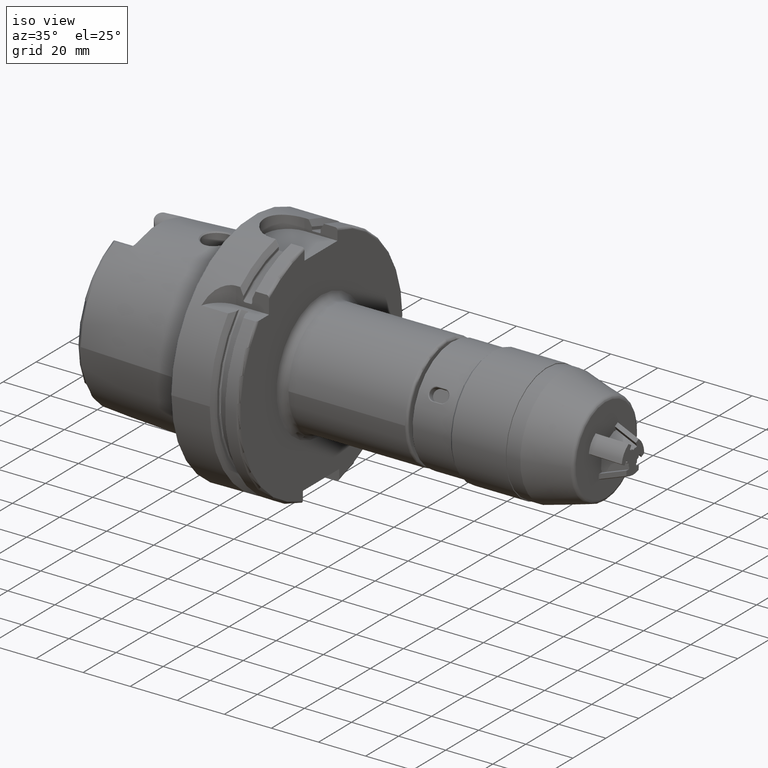
[diagram: clean part render]
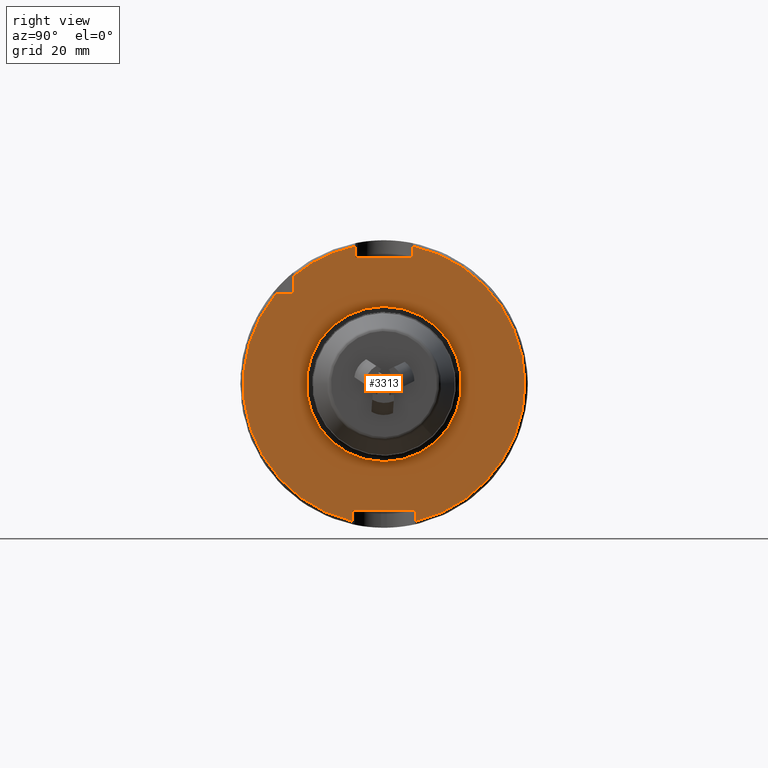
[diagram: tour spotlight — one face highlighted and labeled with its STEP entity id]
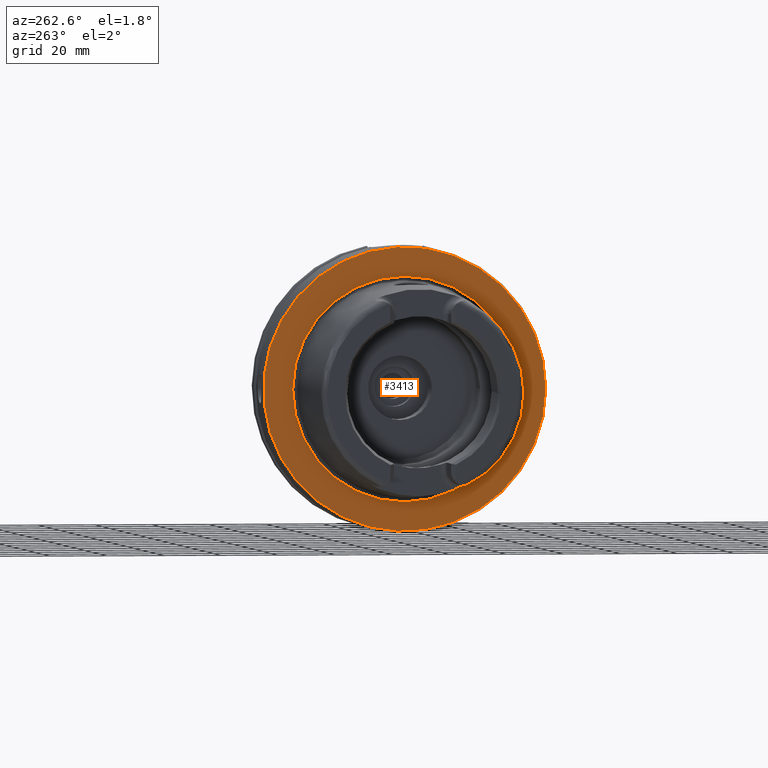
[diagram: tour spotlight — one face highlighted and labeled with its STEP entity id]
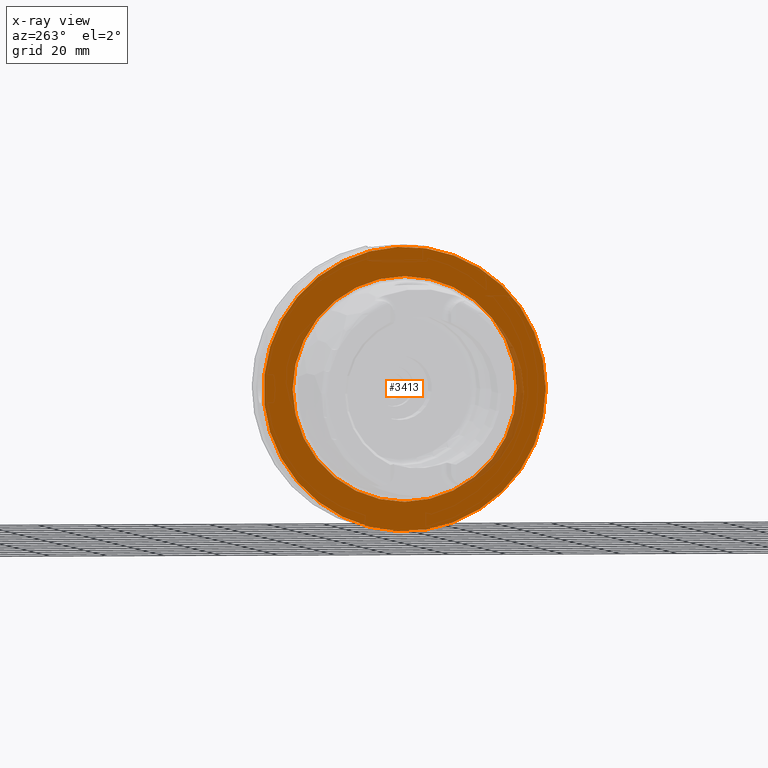
[diagram: x-ray of the same camera — body ghosted, this tour face saturated]
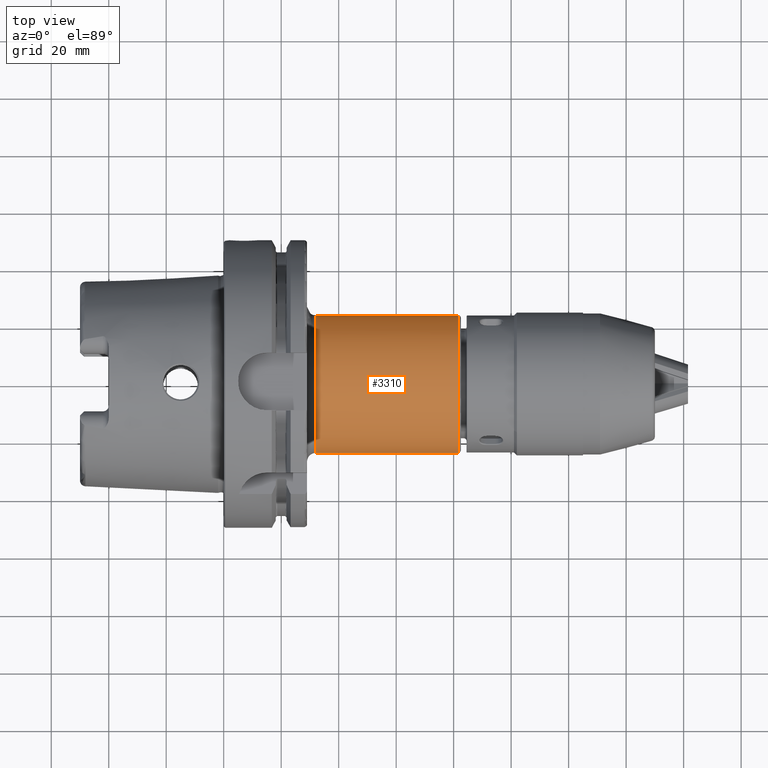
[diagram: tour spotlight — one face highlighted and labeled with its STEP entity id]
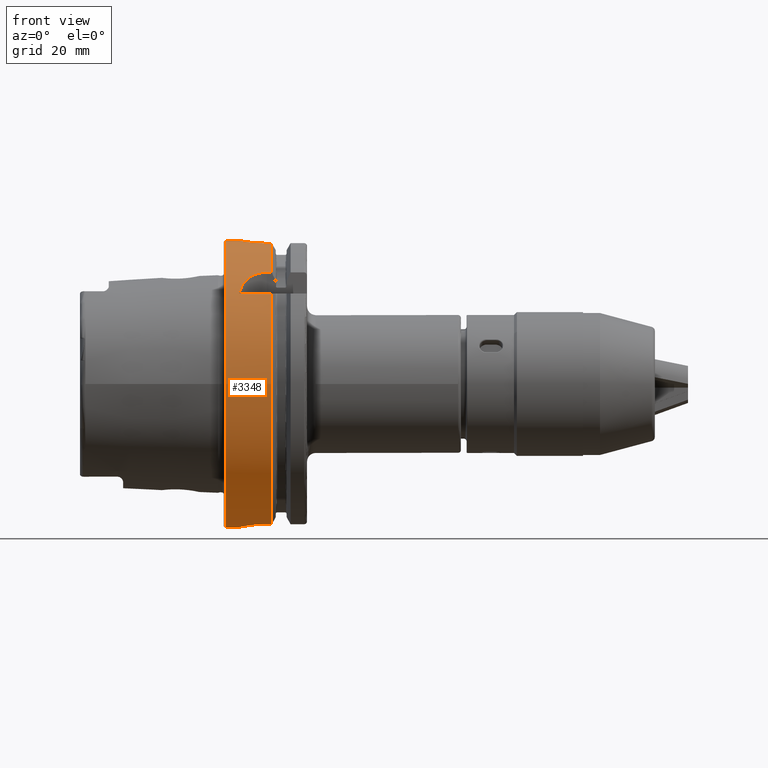
[diagram: tour spotlight — one face highlighted and labeled with its STEP entity id]
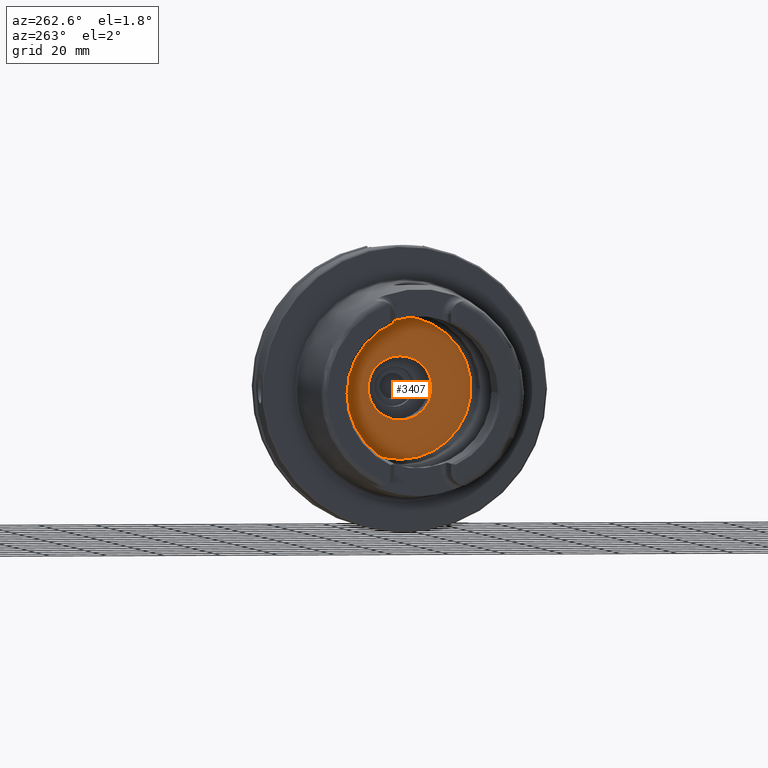
[diagram: tour spotlight — one face highlighted and labeled with its STEP entity id]
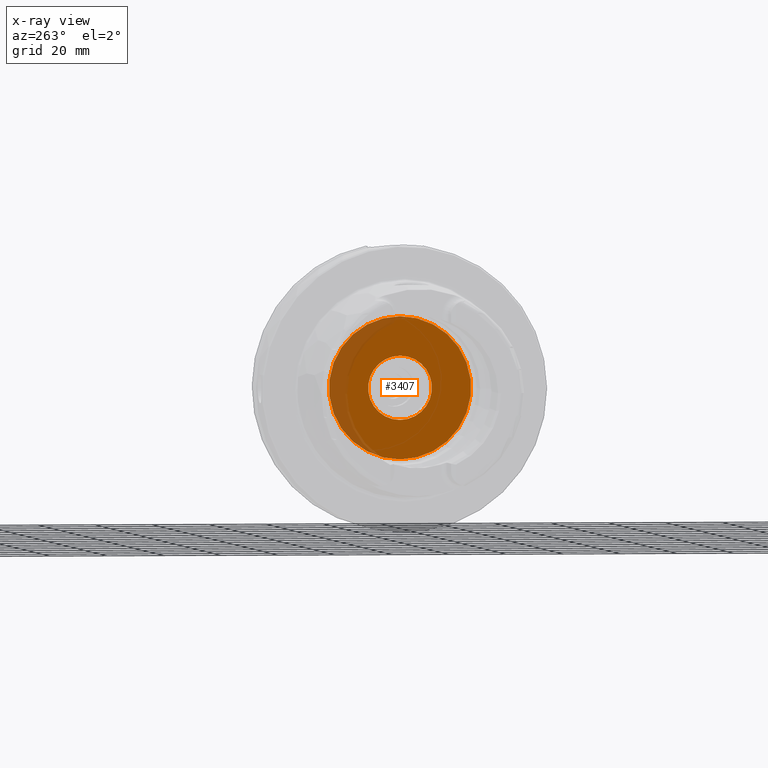
[diagram: x-ray of the same camera — body ghosted, this tour face saturated]
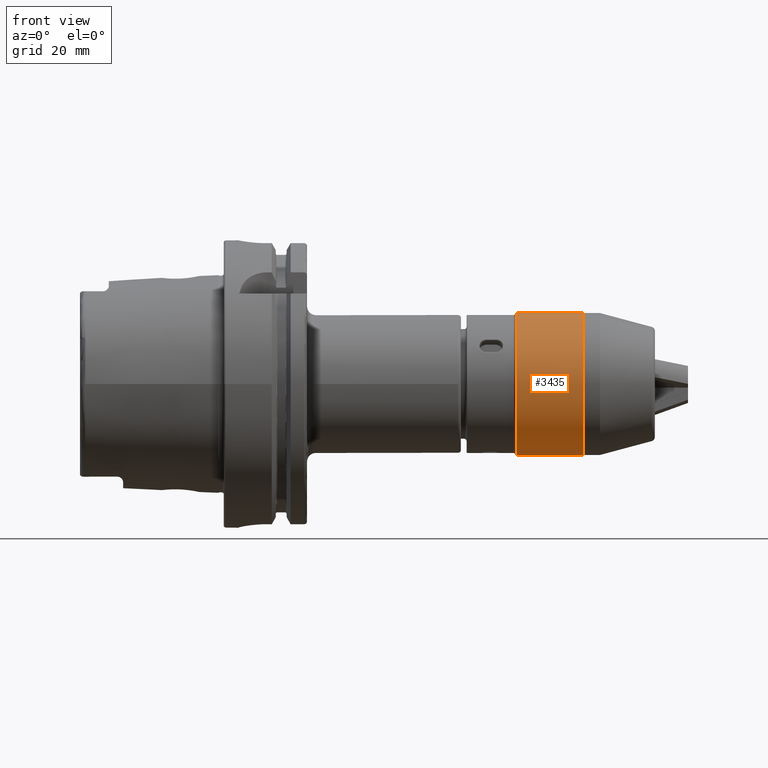
[diagram: tour spotlight — one face highlighted and labeled with its STEP entity id]
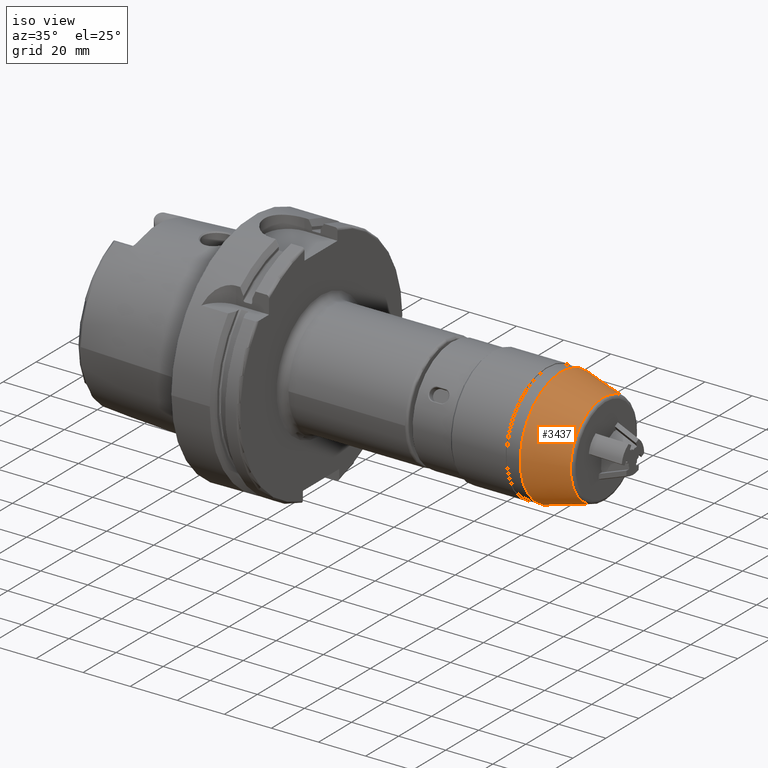
[diagram: tour spotlight — one face highlighted and labeled with its STEP entity id]
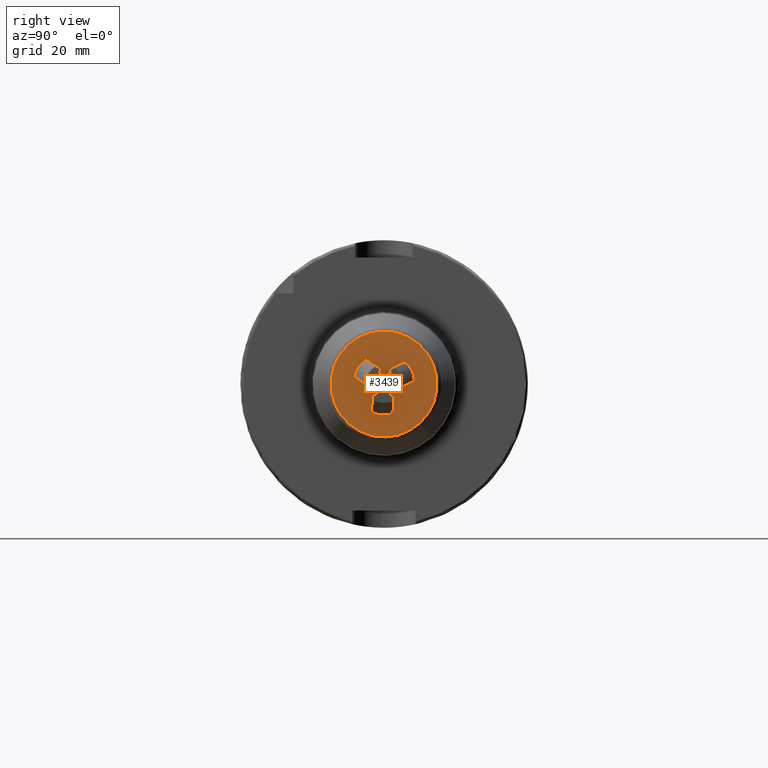
[diagram: tour spotlight — one face highlighted and labeled with its STEP entity id]
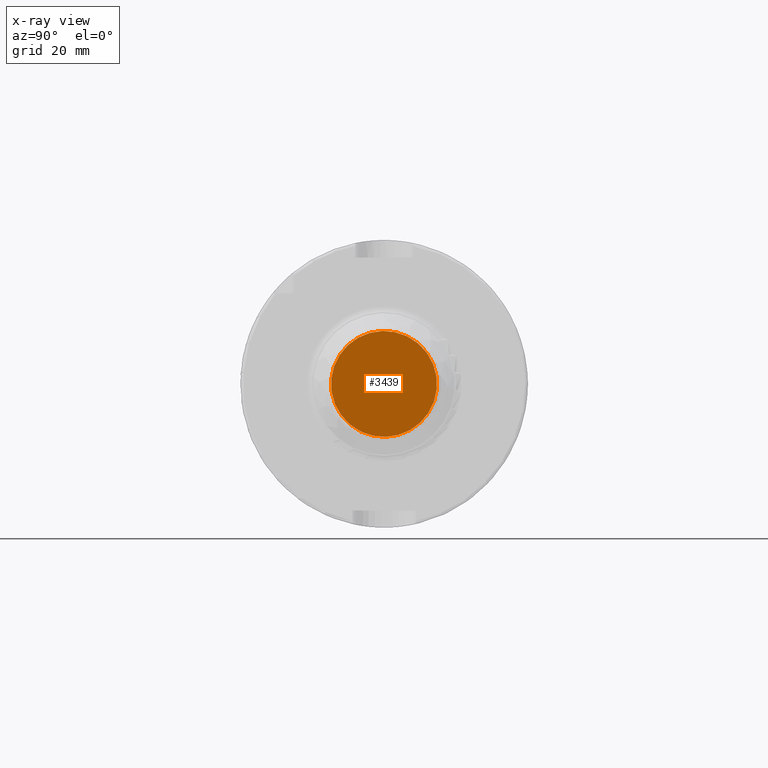
[diagram: x-ray of the same camera — body ghosted, this tour face saturated]
A machine part: a face-by-face anatomy tour. The part has 271 B-rep faces; the first image is the clean iso view, then the 8 largest visible faces are spotlighted one at a time (largest first), each with its STEP entity span.

Face 1 — right view, entity #3313. In plain terms, the highlighted planar face has unit normal (1, 0, 0).
Definition (entity closure, byte-faithful):
#187=FACE_BOUND('',#1021,.T.);
#208=PLANE('',#3698);
#299=LINE('',#5167,#527);
#300=LINE('',#5171,#528);
#301=LINE('',#5173,#529);
#302=LINE('',#5175,#530);
#303=LINE('',#5179,#531);
#304=LINE('',#5181,#532);
#305=LINE('',#5183,#533);
#306=LINE('',#5186,#534);
#527=VECTOR('',#4126,10.);
#528=VECTOR('',#4129,10.);
#529=VECTOR('',#4130,10.);
#530=VECTOR('',#4131,10.);
#531=VECTOR('',#4134,10.);
#532=VECTOR('',#4135,10.);
#533=VECTOR('',#4136,10.);
#534=VECTOR('',#4139,10.);
#814=FACE_OUTER_BOUND('',#1020,.T.);
#1020=EDGE_LOOP('',(#2280,#2281,#2282,#2283,#2284,#2285,#2286,#2287,#2288,
#2289,#2290));
#1021=EDGE_LOOP('',(#2291));
#1249=CIRCLE('',#3697,27.);
#1250=CIRCLE('',#3699,49.);
#1251=CIRCLE('',#3700,49.);
#1252=CIRCLE('',#3701,49.);
#1432=VERTEX_POINT('',#5161);
#1433=VERTEX_POINT('',#5165);
#1434=VERTEX_POINT('',#5166);
#1435=VERTEX_POINT('',#5168);
#1436=VERTEX_POINT('',#5170);
#1437=VERTEX_POINT('',#5172);
#1438=VERTEX_POINT('',#5174);
#1439=VERTEX_POINT('',#5176);
#1440=VERTEX_POINT('',#5178);
#1441=VERTEX_POINT('',#5180);
#1442=VERTEX_POINT('',#5182);
#1443=VERTEX_POINT('',#5184);
#1763=EDGE_CURVE('',#1432,#1432,#1249,.T.);
#1764=EDGE_CURVE('',#1433,#1434,#299,.T.);
#1765=EDGE_CURVE('',#1434,#1435,#1250,.T.);
#1766=EDGE_CURVE('',#1435,#1436,#300,.T.);
#1767=EDGE_CURVE('',#1436,#1437,#301,.T.);
#1768=EDGE_CURVE('',#1437,#1438,#302,.T.);
#1769=EDGE_CURVE('',#1438,#1439,#1251,.T.);
#1770=EDGE_CURVE('',#1439,#1440,#303,.T.);
#1771=EDGE_CURVE('',#1440,#1441,#304,.T.);
#1772=EDGE_CURVE('',#1441,#1442,#305,.T.);
#1773=EDGE_CURVE('',#1442,#1443,#1252,.T.);
#1774=EDGE_CURVE('',#1443,#1433,#306,.T.);
#2280=ORIENTED_EDGE('',*,*,#1764,.T.);
#2281=ORIENTED_EDGE('',*,*,#1765,.T.);
#2282=ORIENTED_EDGE('',*,*,#1766,.T.);
#2283=ORIENTED_EDGE('',*,*,#1767,.T.);
#2284=ORIENTED_EDGE('',*,*,#1768,.T.);
#2285=ORIENTED_EDGE('',*,*,#1769,.T.);
#2286=ORIENTED_EDGE('',*,*,#1770,.T.);
#2287=ORIENTED_EDGE('',*,*,#1771,.T.);
#2288=ORIENTED_EDGE('',*,*,#1772,.T.);
#2289=ORIENTED_EDGE('',*,*,#1773,.T.);
#2290=ORIENTED_EDGE('',*,*,#1774,.T.);
#2291=ORIENTED_EDGE('',*,*,#1763,.F.);
#3313=ADVANCED_FACE('',(#814,#187),#208,.T.);
#3697=AXIS2_PLACEMENT_3D('',#5163,#4122,#4123);
#3698=AXIS2_PLACEMENT_3D('',#5164,#4124,#4125);
#3699=AXIS2_PLACEMENT_3D('',#5169,#4127,#4128);
#3700=AXIS2_PLACEMENT_3D('',#5177,#4132,#4133);
#3701=AXIS2_PLACEMENT_3D('',#5185,#4137,#4138);
#4122=DIRECTION('center_axis',(1.,0.,0.));
#4123=DIRECTION('ref_axis',(0.,-1.,-1.22464679914735E-16));
#4124=DIRECTION('center_axis',(1.,0.,0.));
#4125=DIRECTION('ref_axis',(0.,0.,-1.));
#4126=DIRECTION('',(0.,-1.,0.));
#4127=DIRECTION('center_axis',(1.,0.,0.));
#4128=DIRECTION('ref_axis',(0.,0.,-1.));
#4129=DIRECTION('',(0.,0.,1.));
#4130=DIRECTION('',(0.,1.,0.));
#4131=DIRECTION('',(0.,0.,-1.));
#4132=DIRECTION('center_axis',(1.,0.,0.));
#4133=DIRECTION('ref_axis',(0.,0.,-1.));
#4134=DIRECTION('',(0.,0.,-1.));
#4135=DIRECTION('',(0.,-1.,0.));
#4136=DIRECTION('',(0.,0.,1.));
#4137=DIRECTION('center_axis',(1.,0.,0.));
#4138=DIRECTION('ref_axis',(0.,0.,-1.));
#4139=DIRECTION('',(0.,0.,-1.));
#5161=CARTESIAN_POINT('',(29.,-3.30654635769785E-15,-27.));
#5163=CARTESIAN_POINT('Origin',(29.,0.,0.));
#5164=CARTESIAN_POINT('Origin',(29.,0.,0.));
#5165=CARTESIAN_POINT('',(29.,-31.5,31.5));
#5166=CARTESIAN_POINT('',(29.,-37.5333185316726,31.5));
#5167=CARTESIAN_POINT('',(29.,-18.25,31.5));
#5168=CARTESIAN_POINT('',(29.,-11.,-47.7493455452533));
#5169=CARTESIAN_POINT('Origin',(29.,0.,0.));
#5170=CARTESIAN_POINT('',(29.,-11.,-44.));
#5171=CARTESIAN_POINT('',(29.,-11.,-22.));
#5172=CARTESIAN_POINT('',(29.,11.,-44.));
#5173=CARTESIAN_POINT('',(29.,-5.55111512312578E-16,-44.));
#5174=CARTESIAN_POINT('',(29.,11.,-47.7493455452533));
#5175=CARTESIAN_POINT('',(29.,11.,-22.));
#5176=CARTESIAN_POINT('',(29.,10.,47.9687398208458));
#5177=CARTESIAN_POINT('Origin',(29.,0.,0.));
#5178=CARTESIAN_POINT('',(29.,10.,44.));
#5179=CARTESIAN_POINT('',(29.,10.,22.));
#5180=CARTESIAN_POINT('',(29.,-10.,44.));
#5181=CARTESIAN_POINT('',(29.,0.,44.));
#5182=CARTESIAN_POINT('',(29.,-10.,47.9687398208458));
#5183=CARTESIAN_POINT('',(29.,-10.,22.));
#5184=CARTESIAN_POINT('',(29.,-31.5,37.5333185316726));
#5185=CARTESIAN_POINT('Origin',(29.,0.,0.));
#5186=CARTESIAN_POINT('',(29.,-31.5,15.75));

Face 2 — auxiliary view, entity #3413. An x-ray twin of the same camera follows (body ghosted, this face saturated) — the face is partly hidden behind the body. In plain terms, the highlighted planar face has unit normal (-1, 0, 0).
Definition (entity closure, byte-faithful):
#198=FACE_BOUND('',#1132,.T.);
#244=PLANE('',#3912);
#914=FACE_OUTER_BOUND('',#1131,.T.);
#1131=EDGE_LOOP('',(#2824));
#1132=EDGE_LOOP('',(#2825));
#1357=CIRCLE('',#3911,39.2747800249997);
#1358=CIRCLE('',#3913,49.5);
#1620=VERTEX_POINT('',#6609);
#1621=VERTEX_POINT('',#6613);
#2045=EDGE_CURVE('',#1620,#1620,#1357,.T.);
#2046=EDGE_CURVE('',#1621,#1621,#1358,.T.);
#2824=ORIENTED_EDGE('',*,*,#2046,.F.);
#2825=ORIENTED_EDGE('',*,*,#2045,.T.);
#3413=ADVANCED_FACE('',(#914,#198),#244,.T.);
#3911=AXIS2_PLACEMENT_3D('',#6611,#4648,#4649);
#3912=AXIS2_PLACEMENT_3D('',#6612,#4650,#4651);
#3913=AXIS2_PLACEMENT_3D('',#6614,#4652,#4653);
#4648=DIRECTION('center_axis',(1.,0.,0.));
#4649=DIRECTION('ref_axis',(0.,0.,-1.));
#4650=DIRECTION('center_axis',(-1.,0.,0.));
#4651=DIRECTION('ref_axis',(0.,0.,1.));
#4652=DIRECTION('center_axis',(1.,0.,0.));
#4653=DIRECTION('ref_axis',(0.,0.,-1.));
#6609=CARTESIAN_POINT('',(-1.04950770296597E-15,-39.2747800249997,-4.80977336448322E-15));
#6611=CARTESIAN_POINT('Origin',(0.,0.,0.));
#6612=CARTESIAN_POINT('Origin',(0.,49.5,0.));
#6613=CARTESIAN_POINT('',(1.28369537222284E-15,-49.5,-6.0620016557794E-15));
#6614=CARTESIAN_POINT('Origin',(0.,0.,0.));

Face 3 — top view, entity #3310. In plain terms, the highlighted cylindrical surface (bore or boss wall) has radius 24 mm, axis along (1, 0, 0).
Definition (entity closure, byte-faithful):
#298=LINE('',#5153,#526);
#526=VECTOR('',#4109,24.);
#754=CYLINDRICAL_SURFACE('',#3690,24.);
#811=FACE_OUTER_BOUND('',#1016,.T.);
#1016=EDGE_LOOP('',(#2267,#2268,#2269,#2270,#2271,#2272));
#1243=CIRCLE('',#3688,24.);
#1244=CIRCLE('',#3689,24.);
#1245=CIRCLE('',#3691,24.);
#1246=CIRCLE('',#3692,24.);
#1427=VERTEX_POINT('',#5146);
#1428=VERTEX_POINT('',#5148);
#1429=VERTEX_POINT('',#5152);
#1430=VERTEX_POINT('',#5154);
#1756=EDGE_CURVE('',#1427,#1428,#1243,.T.);
#1757=EDGE_CURVE('',#1428,#1427,#1244,.T.);
#1758=EDGE_CURVE('',#1428,#1429,#298,.T.);
#1759=EDGE_CURVE('',#1430,#1429,#1245,.T.);
#1760=EDGE_CURVE('',#1429,#1430,#1246,.T.);
#2267=ORIENTED_EDGE('',*,*,#1757,.F.);
#2268=ORIENTED_EDGE('',*,*,#1758,.T.);
#2269=ORIENTED_EDGE('',*,*,#1759,.F.);
#2270=ORIENTED_EDGE('',*,*,#1760,.F.);
#2271=ORIENTED_EDGE('',*,*,#1758,.F.);
#2272=ORIENTED_EDGE('',*,*,#1756,.F.);
#3310=ADVANCED_FACE('',(#811),#754,.T.);
#3688=AXIS2_PLACEMENT_3D('',#5149,#4103,#4104);
#3689=AXIS2_PLACEMENT_3D('',#5150,#4105,#4106);
#3690=AXIS2_PLACEMENT_3D('',#5151,#4107,#4108);
#3691=AXIS2_PLACEMENT_3D('',#5155,#4110,#4111);
#3692=AXIS2_PLACEMENT_3D('',#5156,#4112,#4113);
#4103=DIRECTION('center_axis',(1.,0.,0.));
#4104=DIRECTION('ref_axis',(0.,-1.,1.83697019872103E-16));
#4105=DIRECTION('center_axis',(1.,0.,0.));
#4106=DIRECTION('ref_axis',(0.,-1.,1.83697019872103E-16));
#4107=DIRECTION('center_axis',(1.,0.,0.));
#4108=DIRECTION('ref_axis',(0.,1.,0.));
#4109=DIRECTION('',(-1.,0.,0.));
#4110=DIRECTION('center_axis',(-1.,0.,0.));
#4111=DIRECTION('ref_axis',(0.,-1.,-1.22464679914735E-16));
#4112=DIRECTION('center_axis',(-1.,0.,0.));
#4113=DIRECTION('ref_axis',(0.,-1.,-1.22464679914735E-16));
#5146=CARTESIAN_POINT('',(81.5,-2.93915231795365E-15,24.));
#5148=CARTESIAN_POINT('',(81.5,-24.,-2.93915231795365E-15));
#5149=CARTESIAN_POINT('Origin',(81.5,0.,0.));
#5150=CARTESIAN_POINT('Origin',(81.5,0.,0.));
#5151=CARTESIAN_POINT('Origin',(55.75,0.,0.));
#5152=CARTESIAN_POINT('',(32.,-24.,-2.93915231795365E-15));
#5153=CARTESIAN_POINT('',(55.75,-24.,-2.93915231795365E-15));
#5154=CARTESIAN_POINT('',(32.,-2.93915231795365E-15,-24.));
#5155=CARTESIAN_POINT('Origin',(32.,0.,0.));
#5156=CARTESIAN_POINT('Origin',(32.,0.,0.));

Face 4 — front view, entity #3348. In plain terms, the highlighted cylindrical surface (bore or boss wall) has radius 50 mm, axis along (1, 0, 0).
Definition (entity closure, byte-faithful):
#111=B_SPLINE_CURVE_WITH_KNOTS('',3,(#5965,#5966,#5967,#5968,#5969,#5970,
#5971,#5972,#5973,#5974,#5975,#5976,#5977,#5978,#5979,#5980,#5981,#5982,
#5983,#5984,#5985,#5986,#5987,#5988,#5989,#5990),.UNSPECIFIED.,.F.,.F.,
(4,2,2,2,2,2,2,2,2,2,2,2,4),(0.,0.188478911015149,0.376957822030298,0.565436091508923,
0.753914360987547,0.942392630466172,1.1308708999448,1.31934981095995,1.50782872197509,
1.69630763299024,1.88478654400539,2.07326481348402,2.26174308296264),
 .UNSPECIFIED.);
#112=B_SPLINE_CURVE_WITH_KNOTS('',3,(#5991,#5992,#5993,#5994,#5995,#5996,
#5997,#5998,#5999,#6000),.UNSPECIFIED.,.F.,.F.,(4,2,2,2,4),(2.26174308296264,
2.45022135244127,2.63869962191989,2.82717853293504,3.01565744395019),
 .UNSPECIFIED.);
#113=B_SPLINE_CURVE_WITH_KNOTS('',3,(#6004,#6005,#6006,#6007,#6008,#6009,
#6010,#6011,#6012,#6013,#6014,#6015),.UNSPECIFIED.,.F.,.F.,(4,2,2,2,2,4),
(1.13213255574021,1.59216410027009,1.87572541272146,2.15928672517283,2.38471683342296,
2.61014694167308),.UNSPECIFIED.);
#120=B_SPLINE_CURVE_WITH_KNOTS('',3,(#6128,#6129,#6130,#6131,#6132,#6133,
#6134,#6135,#6136,#6137,#6138,#6139,#6140,#6141,#6142,#6143,#6144,#6145),
 .UNSPECIFIED.,.F.,.F.,(4,2,2,2,2,2,2,2,4),(0.,0.377795255890194,0.755590511780389,
1.13336459804459,1.51113868430879,1.88891277057299,2.26668685683718,2.64448211272738,
3.02227736861757),.UNSPECIFIED.);
#121=B_SPLINE_CURVE_WITH_KNOTS('',3,(#6153,#6154,#6155,#6156,#6157,#6158,
#6159,#6160,#6161,#6162),.UNSPECIFIED.,.F.,.F.,(4,2,2,2,4),(0.,0.377863193874929,
0.755726387749858,1.13417752669663,1.51262866564341),.UNSPECIFIED.);
#122=B_SPLINE_CURVE_WITH_KNOTS('',3,(#6166,#6167,#6168,#6169,#6170,#6171,
#6172,#6173,#6174,#6175),.UNSPECIFIED.,.F.,.F.,(4,2,2,2,4),(1.50996806152532,
1.8884192004721,2.26687033941887,2.6447335332938,3.02259672716873),
 .UNSPECIFIED.);
#194=FACE_BOUND('',#1063,.T.);
#338=LINE('',#6021,#566);
#344=LINE('',#6073,#572);
#349=LINE('',#6126,#577);
#350=LINE('',#6147,#578);
#351=LINE('',#6151,#579);
#352=LINE('',#6177,#580);
#353=LINE('',#6181,#581);
#566=VECTOR('',#4329,10.);
#572=VECTOR('',#4337,10.);
#577=VECTOR('',#4346,10.);
#578=VECTOR('',#4347,10.);
#579=VECTOR('',#4350,10.);
#580=VECTOR('',#4353,10.);
#581=VECTOR('',#4356,50.);
#767=CYLINDRICAL_SURFACE('',#3782,50.);
#849=FACE_OUTER_BOUND('',#1062,.T.);
#1062=EDGE_LOOP('',(#2486,#2487,#2488,#2489,#2490,#2491,#2492,#2493,#2494,
#2495,#2496,#2497,#2498,#2499,#2500,#2501,#2502,#2503));
#1063=EDGE_LOOP('',(#2504,#2505));
#1293=CIRCLE('',#3783,50.);
#1294=CIRCLE('',#3784,50.);
#1295=CIRCLE('',#3785,50.);
#1296=CIRCLE('',#3786,50.);
#1297=CIRCLE('',#3787,50.);
#1298=CIRCLE('',#3788,50.);
#1520=VERTEX_POINT('',#5962);
#1521=VERTEX_POINT('',#5964);
#1522=VERTEX_POINT('',#6002);
#1523=VERTEX_POINT('',#6003);
#1525=VERTEX_POINT('',#6020);
#1534=VERTEX_POINT('',#6072);
#1543=VERTEX_POINT('',#6123);
#1544=VERTEX_POINT('',#6125);
#1545=VERTEX_POINT('',#6127);
#1546=VERTEX_POINT('',#6146);
#1547=VERTEX_POINT('',#6148);
#1548=VERTEX_POINT('',#6150);
#1549=VERTEX_POINT('',#6152);
#1550=VERTEX_POINT('',#6163);
#1551=VERTEX_POINT('',#6165);
#1552=VERTEX_POINT('',#6176);
#1553=VERTEX_POINT('',#6178);
#1554=VERTEX_POINT('',#6180);
#1879=EDGE_CURVE('',#1521,#1520,#111,.T.);
#1880=EDGE_CURVE('',#1520,#1521,#112,.T.);
#1881=EDGE_CURVE('',#1522,#1523,#113,.T.);
#1884=EDGE_CURVE('',#1523,#1525,#338,.T.);
#1895=EDGE_CURVE('',#1534,#1522,#344,.T.);
#1905=EDGE_CURVE('',#1543,#1525,#1293,.T.);
#1906=EDGE_CURVE('',#1543,#1544,#349,.T.);
#1907=EDGE_CURVE('',#1544,#1545,#120,.T.);
#1908=EDGE_CURVE('',#1545,#1546,#350,.T.);
#1909=EDGE_CURVE('',#1547,#1546,#1294,.T.);
#1910=EDGE_CURVE('',#1547,#1548,#351,.T.);
#1911=EDGE_CURVE('',#1548,#1549,#121,.T.);
#1912=EDGE_CURVE('',#1549,#1550,#1295,.T.);
#1913=EDGE_CURVE('',#1550,#1551,#122,.T.);
#1914=EDGE_CURVE('',#1551,#1552,#352,.T.);
#1915=EDGE_CURVE('',#1553,#1552,#1296,.T.);
#1916=EDGE_CURVE('',#1553,#1554,#353,.T.);
#1917=EDGE_CURVE('',#1554,#1554,#1297,.T.);
#1918=EDGE_CURVE('',#1534,#1553,#1298,.T.);
#2486=ORIENTED_EDGE('',*,*,#1895,.T.);
#2487=ORIENTED_EDGE('',*,*,#1881,.T.);
#2488=ORIENTED_EDGE('',*,*,#1884,.T.);
#2489=ORIENTED_EDGE('',*,*,#1905,.F.);
#2490=ORIENTED_EDGE('',*,*,#1906,.T.);
#2491=ORIENTED_EDGE('',*,*,#1907,.T.);
#2492=ORIENTED_EDGE('',*,*,#1908,.T.);
#2493=ORIENTED_EDGE('',*,*,#1909,.F.);
#2494=ORIENTED_EDGE('',*,*,#1910,.T.);
#2495=ORIENTED_EDGE('',*,*,#1911,.T.);
#2496=ORIENTED_EDGE('',*,*,#1912,.T.);
#2497=ORIENTED_EDGE('',*,*,#1913,.T.);
#2498=ORIENTED_EDGE('',*,*,#1914,.T.);
#2499=ORIENTED_EDGE('',*,*,#1915,.F.);
#2500=ORIENTED_EDGE('',*,*,#1916,.T.);
#2501=ORIENTED_EDGE('',*,*,#1917,.T.);
#2502=ORIENTED_EDGE('',*,*,#1916,.F.);
#2503=ORIENTED_EDGE('',*,*,#1918,.F.);
#2504=ORIENTED_EDGE('',*,*,#1879,.T.);
#2505=ORIENTED_EDGE('',*,*,#1880,.T.);
#3348=ADVANCED_FACE('',(#849,#194),#767,.T.);
#3782=AXIS2_PLACEMENT_3D('',#6122,#4342,#4343);
#3783=AXIS2_PLACEMENT_3D('',#6124,#4344,#4345);
#3784=AXIS2_PLACEMENT_3D('',#6149,#4348,#4349);
#3785=AXIS2_PLACEMENT_3D('',#6164,#4351,#4352);
#3786=AXIS2_PLACEMENT_3D('',#6179,#4354,#4355);
#3787=AXIS2_PLACEMENT_3D('',#6182,#4357,#4358);
#3788=AXIS2_PLACEMENT_3D('',#6183,#4359,#4360);
#4329=DIRECTION('',(1.,0.,0.));
#4337=DIRECTION('',(-1.,0.,0.));
#4342=DIRECTION('center_axis',(1.,0.,0.));
#4343=DIRECTION('ref_axis',(0.,1.,0.));
#4344=DIRECTION('center_axis',(1.,0.,0.));
#4345=DIRECTION('ref_axis',(0.,0.,-1.));
#4346=DIRECTION('',(-1.,0.,0.));
#4347=DIRECTION('',(1.,0.,0.));
#4348=DIRECTION('center_axis',(1.,0.,0.));
#4349=DIRECTION('ref_axis',(0.,0.,-1.));
#4350=DIRECTION('',(-1.,0.,0.));
#4351=DIRECTION('center_axis',(-1.,0.,0.));
#4352=DIRECTION('ref_axis',(0.,1.,0.));
#4353=DIRECTION('',(1.,0.,0.));
#4354=DIRECTION('center_axis',(1.,0.,0.));
#4355=DIRECTION('ref_axis',(0.,0.,-1.));
#4356=DIRECTION('',(-1.,0.,0.));
#4357=DIRECTION('center_axis',(1.,0.,0.));
#4358=DIRECTION('ref_axis',(0.,0.,-1.));
#4359=DIRECTION('center_axis',(1.,0.,0.));
#4360=DIRECTION('ref_axis',(0.,0.,-1.));
#5962=CARTESIAN_POINT('',(12.,50.,-6.12323399573677E-16));
#5964=CARTESIAN_POINT('',(6.99999999999999,49.749371855331,5.));
#5965=CARTESIAN_POINT('Ctrl Pts',(6.99999999999999,49.749371855331,5.));
#5966=CARTESIAN_POINT('Ctrl Pts',(6.37173696328283,49.749371855331,5.));
#5967=CARTESIAN_POINT('Ctrl Pts',(5.70188570880885,49.7624993987098,4.87435544587055));
#5968=CARTESIAN_POINT('Ctrl Pts',(4.4701142477173,49.8098541153698,4.36395693611591));
#5969=CARTESIAN_POINT('Ctrl Pts',(3.90815809537484,49.8433908660961,3.97922590724033));
#5970=CARTESIAN_POINT('Ctrl Pts',(3.02077560297968,49.9062957431473,3.09184341484517));
#5971=CARTESIAN_POINT('Ctrl Pts',(2.63604339567929,49.9397591808605,2.52988660036719));
#5972=CARTESIAN_POINT('Ctrl Pts',(2.12564400622109,49.9869460568296,1.29811292154946));
#5973=CARTESIAN_POINT('Ctrl Pts',(1.99999999999999,50.,0.628260898262081));
#5974=CARTESIAN_POINT('Ctrl Pts',(1.99999999999999,50.,-0.628260898262082));
#5975=CARTESIAN_POINT('Ctrl Pts',(2.12564400622109,49.9869460568296,-1.29811292154946));
#5976=CARTESIAN_POINT('Ctrl Pts',(2.63604339567929,49.9397591808605,-2.52988660036719));
#5977=CARTESIAN_POINT('Ctrl Pts',(3.02077560297968,49.9062957431473,-3.09184341484517));
#5978=CARTESIAN_POINT('Ctrl Pts',(3.90815809537484,49.8433908660961,-3.97922590724033));
#5979=CARTESIAN_POINT('Ctrl Pts',(4.4701142477173,49.8098541153698,-4.36395693611591));
#5980=CARTESIAN_POINT('Ctrl Pts',(5.70188570880885,49.7624993987098,-4.87435544587055));
#5981=CARTESIAN_POINT('Ctrl Pts',(6.37173696328283,49.749371855331,-5.));
#5982=CARTESIAN_POINT('Ctrl Pts',(7.62826303671716,49.749371855331,-5.));
#5983=CARTESIAN_POINT('Ctrl Pts',(8.29811429119113,49.7624993987098,-4.87435544587055));
#5984=CARTESIAN_POINT('Ctrl Pts',(9.52988575228269,49.8098541153698,-4.36395693611591));
#5985=CARTESIAN_POINT('Ctrl Pts',(10.0918419046251,49.8433908660961,-3.97922590724033));
#5986=CARTESIAN_POINT('Ctrl Pts',(10.9792243970203,49.9062957431473,-3.09184341484517));
#5987=CARTESIAN_POINT('Ctrl Pts',(11.3639566043207,49.9397591808605,-2.52988660036719));
#5988=CARTESIAN_POINT('Ctrl Pts',(11.8743559937789,49.9869460568296,-1.29811292154947));
#5989=CARTESIAN_POINT('Ctrl Pts',(12.,50.,-0.628260898262083));
#5990=CARTESIAN_POINT('Ctrl Pts',(12.,50.,-5.55111512312578E-16));
#5991=CARTESIAN_POINT('Ctrl Pts',(12.,50.,-5.55111512312578E-16));
#5992=CARTESIAN_POINT('Ctrl Pts',(12.,50.,0.628260898262082));
#5993=CARTESIAN_POINT('Ctrl Pts',(11.8743559937789,49.9869460568296,1.29811292154946));
#5994=CARTESIAN_POINT('Ctrl Pts',(11.3639566043207,49.9397591808605,2.52988660036719));
#5995=CARTESIAN_POINT('Ctrl Pts',(10.9792243970203,49.9062957431473,3.09184341484517));
#5996=CARTESIAN_POINT('Ctrl Pts',(10.0918419046251,49.8433908660961,3.97922590724033));
#5997=CARTESIAN_POINT('Ctrl Pts',(9.52988575228269,49.8098541153698,4.36395693611591));
#5998=CARTESIAN_POINT('Ctrl Pts',(8.29811429119113,49.7624993987098,4.87435544587055));
#5999=CARTESIAN_POINT('Ctrl Pts',(7.62826303671716,49.749371855331,5.));
#6000=CARTESIAN_POINT('Ctrl Pts',(6.99999999999999,49.749371855331,5.));
#6002=CARTESIAN_POINT('',(5.36310214079494,-38.8297566307078,31.5));
#6003=CARTESIAN_POINT('',(15.,-31.5,38.8297566307078));
#6004=CARTESIAN_POINT('Ctrl Pts',(5.36310214079494,-38.8297566307078,31.5));
#6005=CARTESIAN_POINT('Ctrl Pts',(5.63795050776221,-37.8378299510303,32.722738779917));
#6006=CARTESIAN_POINT('Ctrl Pts',(6.08245260240086,-36.8264130955983,33.8486741193789));
#6007=CARTESIAN_POINT('Ctrl Pts',(7.14730321206235,-35.2667182945212,35.4540138707062));
#6008=CARTESIAN_POINT('Ctrl Pts',(7.68113760815893,-34.6306580359392,36.0741351437033));
#6009=CARTESIAN_POINT('Ctrl Pts',(8.97436758466638,-33.4722127660808,37.1515365058173));
#6010=CARTESIAN_POINT('Ctrl Pts',(9.73574998094174,-32.9521170857844,37.6088911783762));
#6011=CARTESIAN_POINT('Ctrl Pts',(11.1521999725134,-32.2432973482077,38.2170233500259));
#6012=CARTESIAN_POINT('Ctrl Pts',(11.8888981504148,-31.9629772872452,38.4503075998006));
#6013=CARTESIAN_POINT('Ctrl Pts',(13.4369856471743,-31.5908755949743,38.7566077888176));
#6014=CARTESIAN_POINT('Ctrl Pts',(14.2485663058329,-31.5,38.8297566307078));
#6015=CARTESIAN_POINT('Ctrl Pts',(15.,-31.5,38.8297566307078));
#6020=CARTESIAN_POINT('',(16.7379709790786,-31.5,38.8297566307078));
#6021=CARTESIAN_POINT('',(8.61898548953931,-31.5,38.8297566307078));
#6072=CARTESIAN_POINT('',(16.7379709790786,-38.8297566307078,31.5));
#6073=CARTESIAN_POINT('',(8.61898548953931,-38.8297566307078,31.5));
#6122=CARTESIAN_POINT('Origin',(8.61898548953931,0.,0.));
#6123=CARTESIAN_POINT('',(16.7379709790786,-10.,48.9897948556636));
#6124=CARTESIAN_POINT('Origin',(16.7379709790786,0.,0.));
#6125=CARTESIAN_POINT('',(15.,-10.,48.9897948556636));
#6126=CARTESIAN_POINT('',(8.61898548953931,-10.,48.9897948556636));
#6127=CARTESIAN_POINT('',(15.,10.,48.9897948556636));
#6128=CARTESIAN_POINT('Ctrl Pts',(15.,-10.,48.9897948556636));
#6129=CARTESIAN_POINT('Ctrl Pts',(13.740682480366,-10.,48.9897948556636));
#6130=CARTESIAN_POINT('Ctrl Pts',(12.3998222283811,-9.74762796248614,49.0433876618447));
#6131=CARTESIAN_POINT('Ctrl Pts',(9.93707994969945,-8.72605417648382,49.2354150792771));
#6132=CARTESIAN_POINT('Ctrl Pts',(8.81489539818993,-7.95703102192089,49.3709085101933));
#6133=CARTESIAN_POINT('Ctrl Pts',(7.04301862271998,-6.18515424645094,49.6240337638318));
#6134=CARTESIAN_POINT('Ctrl Pts',(6.27395658455242,-5.06294861197626,49.7583347151863));
#6135=CARTESIAN_POINT('Ctrl Pts',(5.25235457764165,-2.60013306081865,49.9476188647081));
#6136=CARTESIAN_POINT('Ctrl Pts',(4.99999999999999,-1.259246954214,50.));
#6137=CARTESIAN_POINT('Ctrl Pts',(4.99999999999999,1.259246954214,50.));
#6138=CARTESIAN_POINT('Ctrl Pts',(5.25235457764165,2.60013306081865,49.9476188647081));
#6139=CARTESIAN_POINT('Ctrl Pts',(6.27395658455242,5.06294861197626,49.7583347151863));
#6140=CARTESIAN_POINT('Ctrl Pts',(7.04301862271998,6.18515424645094,49.6240337638318));
#6141=CARTESIAN_POINT('Ctrl Pts',(8.81489539818993,7.95703102192089,49.3709085101933));
#6142=CARTESIAN_POINT('Ctrl Pts',(9.93707994969945,8.72605417648382,49.2354150792771));
#6143=CARTESIAN_POINT('Ctrl Pts',(12.3998222283811,9.74762796248614,49.0433876618447));
#6144=CARTESIAN_POINT('Ctrl Pts',(13.740682480366,10.,48.9897948556636));
#6145=CARTESIAN_POINT('Ctrl Pts',(15.,10.,48.9897948556636));
#6146=CARTESIAN_POINT('',(16.7379709790786,10.,48.9897948556636));
#6147=CARTESIAN_POINT('',(8.61898548953931,10.,48.9897948556636));
#6148=CARTESIAN_POINT('',(16.7379709790786,11.,-48.7749935930288));
#6149=CARTESIAN_POINT('Origin',(16.7379709790786,0.,0.));
#6150=CARTESIAN_POINT('',(15.,11.,-48.7749935930288));
#6151=CARTESIAN_POINT('',(8.61898548953931,11.,-48.7749935930288));
#6152=CARTESIAN_POINT('',(4.99999999999999,0.999999999999997,-49.9899989998));
#6153=CARTESIAN_POINT('Ctrl Pts',(15.,11.,-48.7749935930288));
#6154=CARTESIAN_POINT('Ctrl Pts',(13.7404560204169,11.,-48.7749935930288));
#6155=CARTESIAN_POINT('Ctrl Pts',(12.3998213084084,10.7475295248871,-48.8340306344483));
#6156=CARTESIAN_POINT('Ctrl Pts',(9.9383361278342,9.72667325975831,-49.0475663096823));
#6157=CARTESIAN_POINT('Ctrl Pts',(8.81713821454868,8.95850056252305,-49.1990678796225));
#6158=CARTESIAN_POINT('Ctrl Pts',(7.04551978193545,7.18842719108522,-49.4887060645896));
#6159=CARTESIAN_POINT('Ctrl Pts',(6.27594389465425,6.06650925178,-49.6460359942126));
#6160=CARTESIAN_POINT('Ctrl Pts',(5.25307325920197,3.60309260864685,-49.8853600567865));
#6161=CARTESIAN_POINT('Ctrl Pts',(4.99999999999999,2.26125147049483,-49.9647689238702));
#6162=CARTESIAN_POINT('Ctrl Pts',(4.99999999999999,1.,-49.9899989998));
#6163=CARTESIAN_POINT('',(4.99999999999999,-1.00000000000001,-49.9899989998));
#6164=CARTESIAN_POINT('Origin',(4.99999999999999,0.,0.));
#6165=CARTESIAN_POINT('',(15.,-11.,-48.7749935930288));
#6166=CARTESIAN_POINT('Ctrl Pts',(4.99999999999999,-1.,-49.9899989998));
#6167=CARTESIAN_POINT('Ctrl Pts',(4.99999999999999,-2.26125147049483,-49.9647689238702));
#6168=CARTESIAN_POINT('Ctrl Pts',(5.25307325920197,-3.60309260864686,-49.8853600567865));
#6169=CARTESIAN_POINT('Ctrl Pts',(6.27594389465425,-6.06650925178001,-49.6460359942126));
#6170=CARTESIAN_POINT('Ctrl Pts',(7.04551978193545,-7.18842719108522,-49.4887060645896));
#6171=CARTESIAN_POINT('Ctrl Pts',(8.81713821454868,-8.95850056252306,-49.1990678796225));
#6172=CARTESIAN_POINT('Ctrl Pts',(9.9383361278342,-9.72667325975831,-49.0475663096823));
#6173=CARTESIAN_POINT('Ctrl Pts',(12.3998213084084,-10.7475295248871,-48.8340306344483));
#6174=CARTESIAN_POINT('Ctrl Pts',(13.7404560204169,-11.,-48.7749935930288));
#6175=CARTESIAN_POINT('Ctrl Pts',(15.,-11.,-48.7749935930288));
#6176=CARTESIAN_POINT('',(16.7379709790786,-11.,-48.7749935930288));
#6177=CARTESIAN_POINT('',(8.61898548953931,-11.,-48.7749935930288));
#6178=CARTESIAN_POINT('',(16.7379709790786,-50.,-6.12323399573677E-15));
#6179=CARTESIAN_POINT('Origin',(16.7379709790786,0.,0.));
#6180=CARTESIAN_POINT('',(0.5,-50.,-6.12323399573677E-15));
#6181=CARTESIAN_POINT('',(8.61898548953931,-50.,-6.12323399573677E-15));
#6182=CARTESIAN_POINT('Origin',(0.5,0.,0.));
#6183=CARTESIAN_POINT('Origin',(16.7379709790786,0.,0.));

Face 5 — auxiliary view, entity #3407. An x-ray twin of the same camera follows (body ghosted, this face saturated) — the face is partly hidden behind the body. In plain terms, the highlighted planar face has unit normal (1, 0, 0).
Definition (entity closure, byte-faithful):
#197=FACE_BOUND('',#1125,.T.);
#243=PLANE('',#3896);
#908=FACE_OUTER_BOUND('',#1124,.T.);
#1124=EDGE_LOOP('',(#2794));
#1125=EDGE_LOOP('',(#2795));
#1341=CIRCLE('',#3885,11.188101);
#1348=CIRCLE('',#3897,24.9);
#1607=VERTEX_POINT('',#6566);
#1613=VERTEX_POINT('',#6586);
#2024=EDGE_CURVE('',#1607,#1607,#1341,.T.);
#2033=EDGE_CURVE('',#1613,#1613,#1348,.T.);
#2794=ORIENTED_EDGE('',*,*,#2033,.T.);
#2795=ORIENTED_EDGE('',*,*,#2024,.T.);
#3407=ADVANCED_FACE('',(#908,#197),#243,.F.);
#3885=AXIS2_PLACEMENT_3D('',#6567,#4591,#4592);
#3896=AXIS2_PLACEMENT_3D('',#6585,#4615,#4616);
#3897=AXIS2_PLACEMENT_3D('',#6587,#4617,#4618);
#4591=DIRECTION('center_axis',(1.,0.,0.));
#4592=DIRECTION('ref_axis',(0.,0.,1.));
#4615=DIRECTION('center_axis',(1.,0.,0.));
#4616=DIRECTION('ref_axis',(0.,0.,-1.));
#4617=DIRECTION('center_axis',(-1.,0.,0.));
#4618=DIRECTION('ref_axis',(0.,0.,1.));
#6566=CARTESIAN_POINT('',(12.5,-1.37014720781873E-15,-11.188101));
#6567=CARTESIAN_POINT('Origin',(12.5,0.,0.));
#6585=CARTESIAN_POINT('Origin',(12.5,24.9,0.));
#6586=CARTESIAN_POINT('',(12.5,-3.04937052987691E-15,-24.9));
#6587=CARTESIAN_POINT('Origin',(12.5,0.,0.));

Face 6 — front view, entity #3435. In plain terms, the highlighted cylindrical surface (bore or boss wall) has radius 25 mm, axis along (-1, 0, 0).
Definition (entity closure, byte-faithful):
#404=LINE('',#6690,#632);
#632=VECTOR('',#4763,25.);
#790=CYLINDRICAL_SURFACE('',#3964,25.);
#936=FACE_OUTER_BOUND('',#1155,.T.);
#1155=EDGE_LOOP('',(#2911,#2912,#2913,#2914,#2915));
#1382=CIRCLE('',#3961,25.);
#1384=CIRCLE('',#3963,25.);
#1385=CIRCLE('',#3965,25.);
#1635=VERTEX_POINT('',#6681);
#1636=VERTEX_POINT('',#6682);
#1638=VERTEX_POINT('',#6689);
#2076=EDGE_CURVE('',#1635,#1636,#1382,.T.);
#2079=EDGE_CURVE('',#1636,#1635,#1384,.T.);
#2080=EDGE_CURVE('',#1635,#1638,#404,.T.);
#2081=EDGE_CURVE('',#1638,#1638,#1385,.T.);
#2911=ORIENTED_EDGE('',*,*,#2076,.F.);
#2912=ORIENTED_EDGE('',*,*,#2080,.T.);
#2913=ORIENTED_EDGE('',*,*,#2081,.T.);
#2914=ORIENTED_EDGE('',*,*,#2080,.F.);
#2915=ORIENTED_EDGE('',*,*,#2079,.F.);
#3435=ADVANCED_FACE('',(#936),#790,.T.);
#3961=AXIS2_PLACEMENT_3D('',#6683,#4754,#4755);
#3963=AXIS2_PLACEMENT_3D('',#6687,#4759,#4760);
#3964=AXIS2_PLACEMENT_3D('',#6688,#4761,#4762);
#3965=AXIS2_PLACEMENT_3D('',#6691,#4764,#4765);
#4754=DIRECTION('center_axis',(9.33664374448044E-21,-1.,-2.19361169022002E-20));
#4755=DIRECTION('ref_axis',(4.32986979603811E-15,2.19361169022003E-20,-1.));
#4759=DIRECTION('center_axis',(9.33664374448044E-21,-1.,-2.19361169022002E-20));
#4760=DIRECTION('ref_axis',(4.32986979603811E-15,2.19361169022003E-20,-1.));
#4761=DIRECTION('center_axis',(9.33664374448044E-21,-1.,-2.19361169022002E-20));
#4762=DIRECTION('ref_axis',(4.32986979603811E-15,2.19361169022003E-20,-1.));
#4763=DIRECTION('',(-9.33664374448044E-21,1.,2.19361169022002E-20));
#4764=DIRECTION('center_axis',(9.33664374448044E-21,-1.,-2.19361169022002E-20));
#4765=DIRECTION('ref_axis',(4.32986979603811E-15,2.19361169022003E-20,-1.));
#6681=CARTESIAN_POINT('',(-1.05185244611131E-13,1.,25.));
#6682=CARTESIAN_POINT('',(1.05185118566441E-13,1.,-25.));
#6683=CARTESIAN_POINT('Origin',(-9.33664381848918E-21,1.,2.19361169330638E-20));
#6687=CARTESIAN_POINT('Origin',(-9.33664381848918E-21,1.,2.19361169330638E-20));
#6688=CARTESIAN_POINT('Origin',(0.,0.,0.));
#6689=CARTESIAN_POINT('',(-1.11308585978271E-13,24.,25.));
#6690=CARTESIAN_POINT('',(-1.11308361898821E-13,-5.48402922555007E-19,25.));
#6691=CARTESIAN_POINT('Origin',(-2.24079450041367E-19,24.,5.26466805653975E-19));

Face 7 — iso view, entity #3437. In plain terms, the highlighted conical surface has half-angle 15 deg.
Definition (entity closure, byte-faithful):
#184=CONICAL_SURFACE('',#3969,24.7,0.261799387799143);
#406=LINE('',#6700,#634);
#634=VECTOR('',#4775,24.7);
#938=FACE_OUTER_BOUND('',#1157,.T.);
#1157=EDGE_LOOP('',(#2920,#2921,#2922,#2923));
#1387=CIRCLE('',#3968,24.7);
#1388=CIRCLE('',#3970,19.8800686820308);
#1640=VERTEX_POINT('',#6695);
#1641=VERTEX_POINT('',#6699);
#2084=EDGE_CURVE('',#1640,#1640,#1387,.T.);
#2085=EDGE_CURVE('',#1640,#1641,#406,.T.);
#2086=EDGE_CURVE('',#1641,#1641,#1388,.T.);
#2920=ORIENTED_EDGE('',*,*,#2084,.F.);
#2921=ORIENTED_EDGE('',*,*,#2085,.T.);
#2922=ORIENTED_EDGE('',*,*,#2086,.T.);
#2923=ORIENTED_EDGE('',*,*,#2085,.F.);
#3437=ADVANCED_FACE('',(#938),#184,.T.);
#3968=AXIS2_PLACEMENT_3D('',#6697,#4771,#4772);
#3969=AXIS2_PLACEMENT_3D('',#6698,#4773,#4774);
#3970=AXIS2_PLACEMENT_3D('',#6701,#4776,#4777);
#4771=DIRECTION('center_axis',(9.33664374448044E-21,-1.,-2.19361169022002E-20));
#4772=DIRECTION('ref_axis',(4.32986979603811E-15,2.19361169022003E-20,-1.));
#4773=DIRECTION('center_axis',(9.33664374448044E-21,-1.,-2.19361169022002E-20));
#4774=DIRECTION('ref_axis',(4.32986979603811E-15,2.19361169022003E-20,-1.));
#4775=DIRECTION('',(1.1523399390378E-15,0.96592582628907,-0.258819045102515));
#4776=DIRECTION('center_axis',(9.33664374448044E-21,-1.,-2.19361169022002E-20));
#4777=DIRECTION('ref_axis',(4.32986979603811E-15,2.19361169022003E-20,-1.));
#6695=CARTESIAN_POINT('',(-1.09972940721683E-13,29.9,24.7));
#6697=CARTESIAN_POINT('Origin',(-2.79165648036739E-19,29.9,6.55889895421925E-19));
#6698=CARTESIAN_POINT('Origin',(-2.79165648036739E-19,29.9,6.55889895421925E-19));
#6699=CARTESIAN_POINT('',(-8.85131622926461E-14,47.8882285676538,19.8800686820308));
#6700=CARTESIAN_POINT('',(-1.09972940721683E-13,29.9,24.7));
#6701=CARTESIAN_POINT('Origin',(-4.47115329783956E-19,47.8882285676538,
1.05048178014135E-18));

Face 8 — right view, entity #3439. An x-ray twin of the same camera follows (body ghosted, this face saturated) — the face is partly hidden behind the body. In plain terms, the highlighted planar face has unit normal (1, -0, -0).
Definition (entity closure, byte-faithful):
#250=PLANE('',#3974);
#940=FACE_OUTER_BOUND('',#1159,.T.);
#1159=EDGE_LOOP('',(#2928));
#1390=CIRCLE('',#3973,18.4311799425972);
#1642=VERTEX_POINT('',#6703);
#2088=EDGE_CURVE('',#1642,#1642,#1390,.T.);
#2928=ORIENTED_EDGE('',*,*,#2088,.F.);
#3439=ADVANCED_FACE('',(#940),#250,.T.);
#3973=AXIS2_PLACEMENT_3D('',#6705,#4782,#4783);
#3974=AXIS2_PLACEMENT_3D('',#6706,#4784,#4785);
#4782=DIRECTION('center_axis',(9.33664374448044E-21,-1.,-2.19361169022002E-20));
#4783=DIRECTION('ref_axis',(4.32986979603811E-15,2.19361169022003E-20,-1.));
#4784=DIRECTION('center_axis',(-9.33664374448025E-21,1.,-2.19361169022173E-20));
#4785=DIRECTION('ref_axis',(-4.32986979603811E-15,2.19361169022172E-20,
1.));
#6703=CARTESIAN_POINT('',(-8.20622353864598E-14,49.,18.4311799425972));
#6705=CARTESIAN_POINT('Origin',(-4.57495543568422E-19,49.,1.07486972825026E-18));
#6706=CARTESIAN_POINT('Origin',(18.4311799425972,49.,-8.64556690500866E-14));